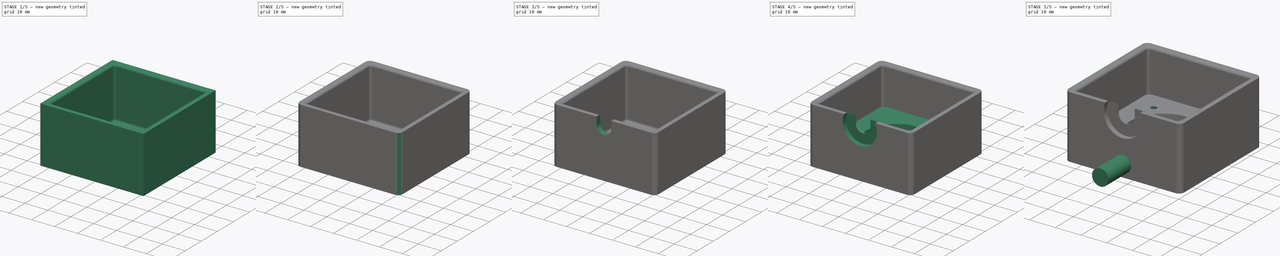
[diagram: build sequence overview — one tinted view per stage of 5, left to right]
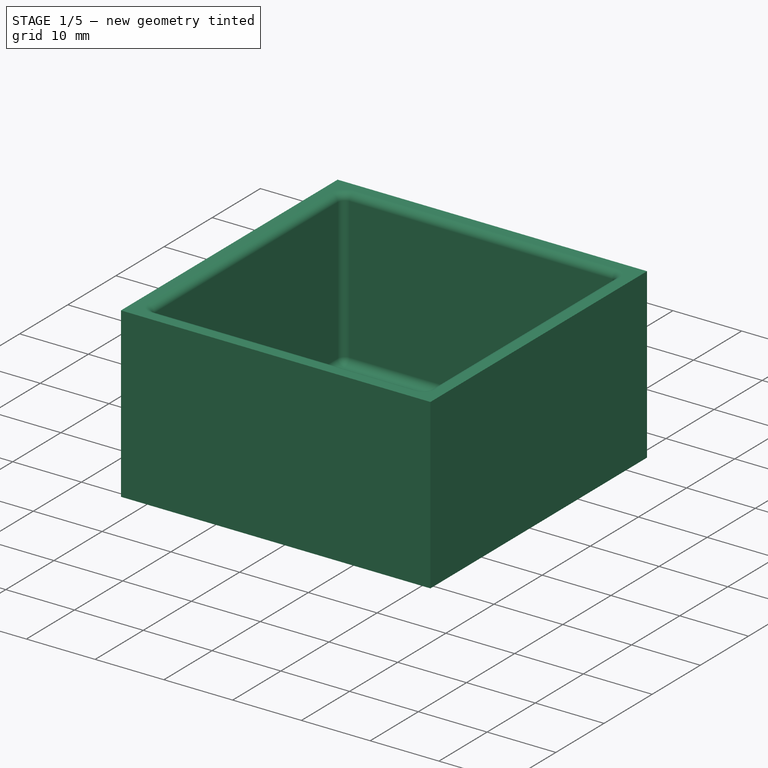
[diagram: stage 1 of 5 — iso view after this stage's code; geometry added in this stage tinted green]
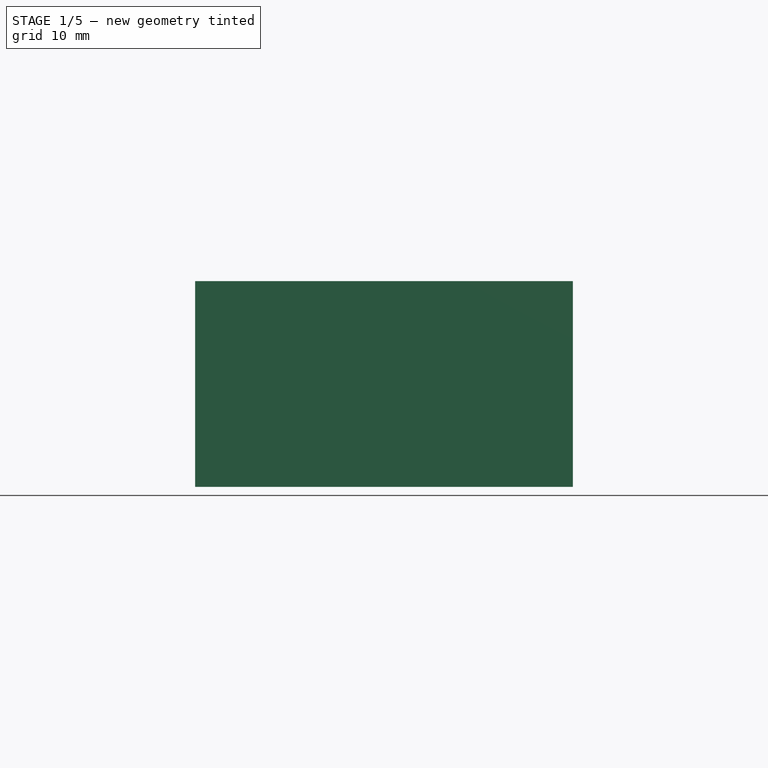
[diagram: stage 1 of 5 — front view after this stage's code; geometry added in this stage tinted green]
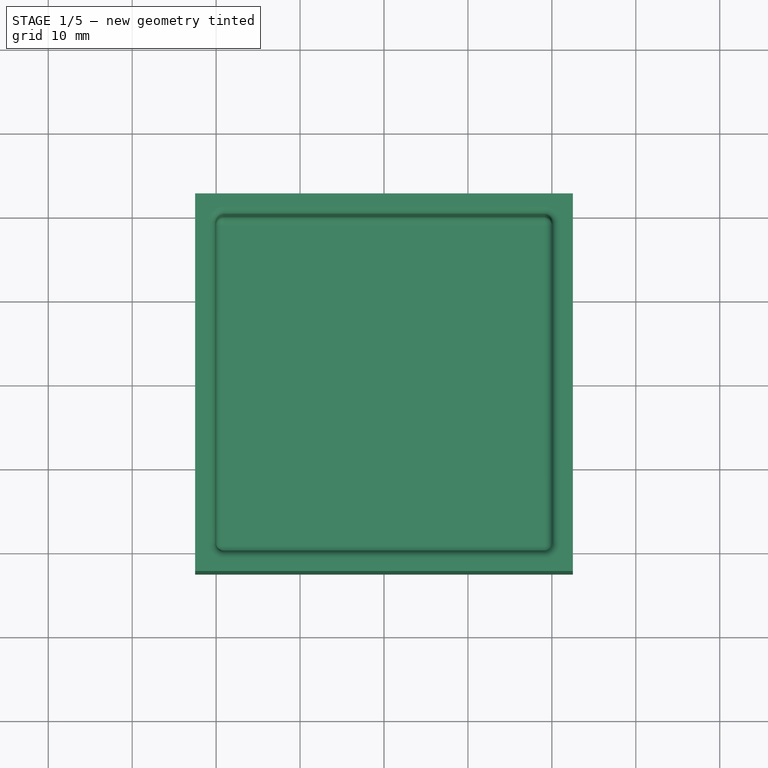
[diagram: stage 1 of 5 — top view after this stage's code; geometry added in this stage tinted green]
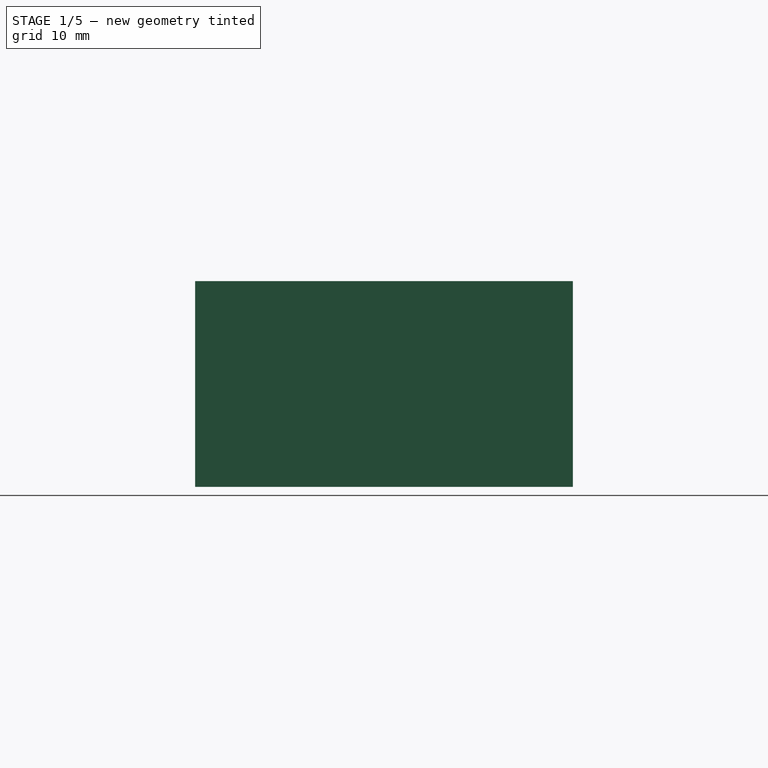
[diagram: stage 1 of 5 — right view after this stage's code; geometry added in this stage tinted green]
FCSTD DOCUMENT  (FreeCAD 0.20R29603 (Git))
Label: dfm_37ux178-ml-c-mount
License: All rights reserved
LicenseURL: http://en.wikipedia.org/wiki/All_rights_reserved
objects: Sketcher::SketchObject×12, PartDesign::Pocket×5, PartDesign::Pad×4, PartDesign::Hole×3, PartDesign::Fillet×3, PartDesign::Body×2, App::Part×1, PartDesign::Mirrored×1, PartDesign::PolarPattern×1
note: 46 computed .brp shape members not serialized (recipe doc carries the construction recipe); baked Part::Feature solids carry a one-line shape summary decoded from their .brp

FEATURE [PartDesign::Body] Body  label="Body-main-mount"
  Group = -> [Sketch,Pad,Sketch002,Hole001,Fillet,Sketch003,Pad001,Sketch001,Hole,Sketch004,Pad002]
  Origin = -> Origin001
  Tip = -> Pad002
FEATURE [Sketcher::SketchObject] Sketch005
  FullyConstrained = true
  MapMode = 5
  Support = -> [XY_Plane002]
  sketch-geometry (5):
    g0: LineSegment StartX=-22.5 StartY=22.5 StartZ=0 EndX=-22.5 EndY=-22.5 EndZ=0
    g1: LineSegment StartX=-22.5 StartY=-22.5 StartZ=0 EndX=22.5 EndY=-22.5 EndZ=0
    g2: LineSegment StartX=22.5 StartY=-22.5 StartZ=0 EndX=22.5 EndY=22.5 EndZ=0
    g3: LineSegment StartX=22.5 StartY=22.5 StartZ=0 EndX=-22.5 EndY=22.5 EndZ=0
    g4: GeomPoint X=0 Y=0 Z=0
  constraints (12):
    c: Coincident(g0,g1)
    c: Coincident(g1,g2)
    c: Coincident(g2,g3)
    c: Coincident(g3,g0)
    c: Horizontal(g1)
    c: Horizontal(g3)
    c: Vertical(g0)
    c: Vertical(g2)
    c: Symmetric(g1,g0,g4)
    c: Coincident(g4,g-1)
    c: DistanceY(g2,g2) = 45
    c: Equal(g3,g0)
FEATURE [PartDesign::Pad] Pad003
  Direction = (0,0,1)
  Length = 24.5
  Length2 = 10
  Profile = -> Sketch005
  ReferenceAxis = -> Sketch005 [N_Axis]
  Type = 0
FEATURE [Sketcher::SketchObject] Sketch006
  FullyConstrained = true
  MapMode = 5
  Placement = pos=(0,0,24.5) rot=(0,0,1;0rad)
  Support = -> [Pad003]
  sketch-geometry (5):
    g0: LineSegment StartX=-20.05 StartY=20.05 StartZ=0 EndX=-20.05 EndY=-20.05 EndZ=0
    g1: LineSegment StartX=-20.05 StartY=-20.05 StartZ=0 EndX=20.05 EndY=-20.05 EndZ=0
    g2: LineSegment StartX=20.05 StartY=-20.05 StartZ=0 EndX=20.05 EndY=20.05 EndZ=0
    g3: LineSegment StartX=20.05 StartY=20.05 StartZ=0 EndX=-20.05 EndY=20.05 EndZ=0
    g4: GeomPoint X=0 Y=0 Z=0
  constraints (12):
    c: Coincident(g0,g1)
    c: Coincident(g1,g2)
    c: Coincident(g2,g3)
    c: Coincident(g3,g0)
    c: Horizontal(g1)
    c: Horizontal(g3)
    c: Vertical(g0)
    c: Vertical(g2)
    c: Symmetric(g1,g0,g4)
    c: Coincident(g4,g-1)
    c: Equal(g1,g2)
    c: DistanceY(g2,g2) = 40.1
FEATURE [PartDesign::Pocket] Pocket
  BaseFeature = -> Pad003
  Direction = (0,0,-1)
  Length = 22.5
  Length2 = 5
  Profile = -> Sketch006
  ReferenceAxis = -> Sketch006 [N_Axis]
  Type = 0
FEATURE [PartDesign::Fillet] Fillet001
  Base = -> Pocket [Face8,Face7,Face10,Face9]
  BaseFeature = -> Pocket
  Radius = 1
  SupportTransform = false
  UseAllEdges = false
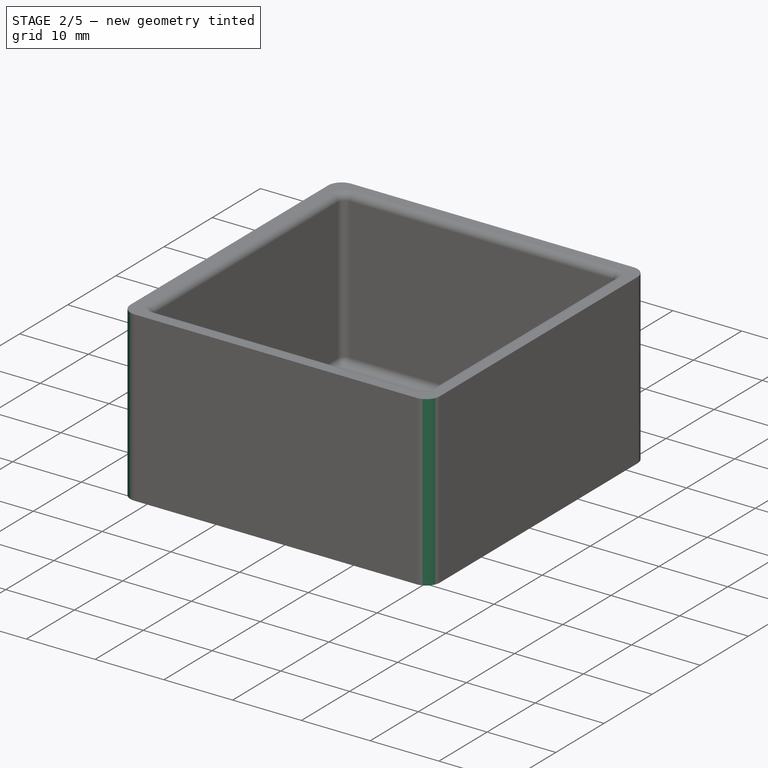
[diagram: stage 2 of 5 — iso view after this stage's code; geometry added in this stage tinted green]
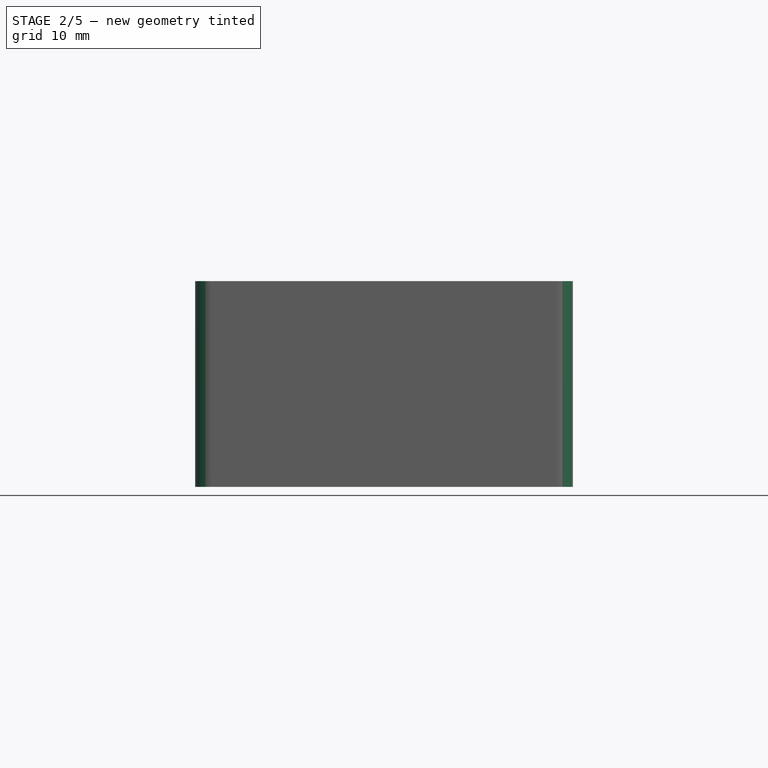
[diagram: stage 2 of 5 — front view after this stage's code; geometry added in this stage tinted green]
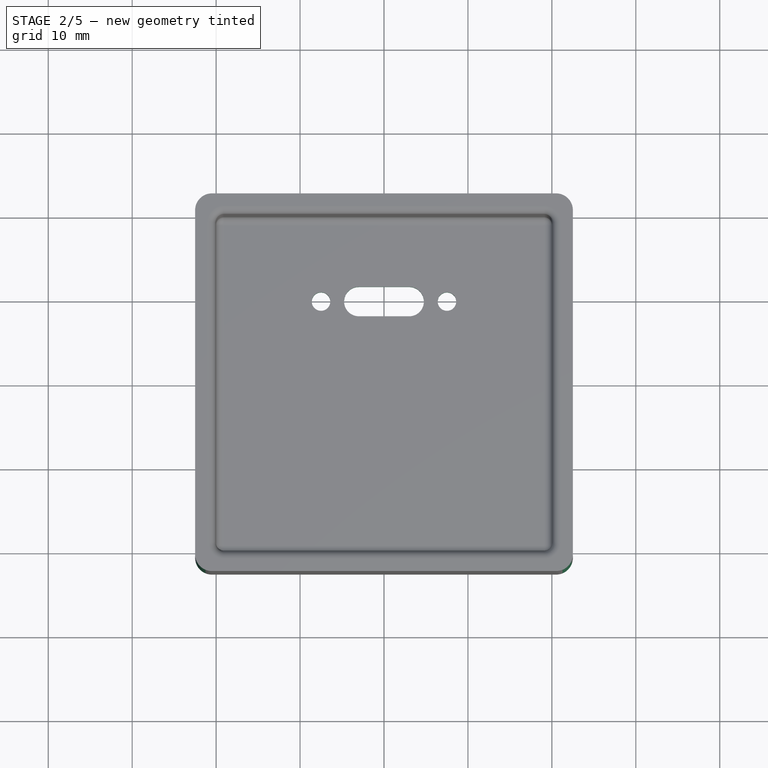
[diagram: stage 2 of 5 — top view after this stage's code; geometry added in this stage tinted green]
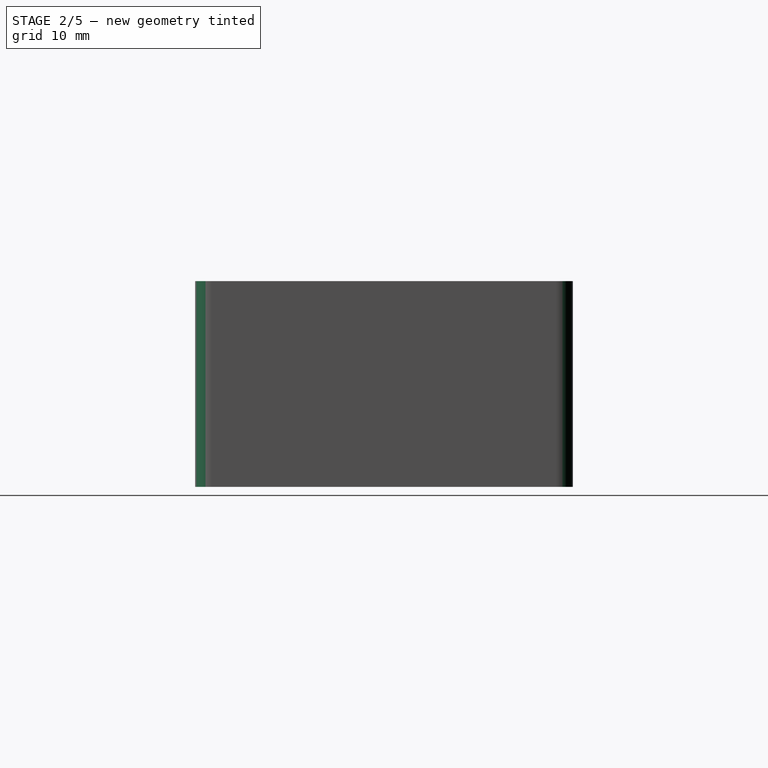
[diagram: stage 2 of 5 — right view after this stage's code; geometry added in this stage tinted green]
FEATURE [PartDesign::Fillet] Fillet002
  Base = -> Fillet001 [Edge30,Edge29,Edge32,Edge34]
  BaseFeature = -> Fillet001
  Radius = 2
  SupportTransform = false
  UseAllEdges = false
FEATURE [Sketcher::SketchObject] Sketch007
  FullyConstrained = true
  MapMode = 5
  Placement = pos=(0,0,0) rot=(1,0,0;3.14159rad)
  Support = -> [Fillet002]
  sketch-geometry (10):
    g0: ArcOfCircle CenterX=-3 CenterY=-10 CenterZ=0 NormalX=0 NormalY=0 NormalZ=1 AngleXU=0 Radius=1.75 StartAngle=1.5708 EndAngle=4.71239
    g1: ArcOfCircle CenterX=3 CenterY=-10 CenterZ=0 NormalX=0 NormalY=0 NormalZ=1 AngleXU=0 Radius=1.75 StartAngle=4.71239 EndAngle=7.85398
    g2: LineSegment StartX=-3 StartY=-11.75 StartZ=0 EndX=3 EndY=-11.75 EndZ=0
    g3: LineSegment StartX=3 StartY=-8.25 StartZ=0 EndX=-3 EndY=-8.25 EndZ=0
    g4: GeomPoint X=-4.75 Y=-10 Z=0
    g5: GeomPoint X=4.75 Y=-10 Z=0
    g6: LineSegment StartX=-4.75 StartY=-10 StartZ=0 EndX=-3 EndY=-8.25 EndZ=0
    g7: LineSegment StartX=-4.75 StartY=-10 StartZ=0 EndX=-3 EndY=-11.75 EndZ=0
    g8: LineSegment StartX=3 StartY=-8.25 StartZ=0 EndX=4.75 EndY=-10 EndZ=0
    g9: LineSegment StartX=3 StartY=-11.75 StartZ=0 EndX=4.75 EndY=-10 EndZ=0
  constraints (21):
    c: Tangent(g0,g2) = -1.5708
    c: Tangent(g2,g1) = -1.5708
    c: Tangent(g1,g3) = -1.5708
    c: Tangent(g3,g0) = -1.5708
    c: Equal(g0,g1)
    c: Symmetric(g0,g1,g-2)
    c: DistanceY(g1,g1) = 3.5
    c: PointOnObject(g4,g0)
    c: PointOnObject(g5,g1)
    c: Coincident(g6,g4)
    c: Coincident(g6,g0)
    c: Coincident(g7,g4)
    c: Coincident(g7,g0)
    c: Equal(g6,g7)
    c: Coincident(g8,g1)
    c: Coincident(g8,g5)
    c: Coincident(g9,g1)
    c: Coincident(g9,g5)
    c: Equal(g8,g9)
    c: DistanceX(g4,g5) = 9.5
    c: DistanceY(g4,g-1) = 10
FEATURE [PartDesign::Pocket] Pocket001
  BaseFeature = -> Fillet002
  Direction = (0,0,1)
  Length = 2
  Length2 = 5
  Profile = -> Sketch007
  ReferenceAxis = -> Sketch007 [N_Axis]
  Type = 0
FEATURE [Sketcher::SketchObject] Sketch008
  FullyConstrained = true
  MapMode = 5
  Placement = pos=(0,0,0) rot=(1,0,0;3.14159rad)
  Support = -> [Pocket001]
  sketch-geometry (1):
    g0: Circle CenterX=-7.5 CenterY=-10 CenterZ=0 NormalX=0 NormalY=0 NormalZ=1 AngleXU=0 Radius=1.1
  constraints (3):
    c: DistanceY(g0,g-1) = 10
    c: DistanceX(g0,g-1) = 7.5
    c: Diameter(g0) = 2.2
FEATURE [PartDesign::Hole] Hole002
  BaseFeature = -> Pocket001
  CustomThreadClearance = 0
  Depth = 2
  DepthType = 0
  Diameter = 2.2
  DrillForDepth = false
  DrillPoint = 1
  DrillPointAngle = 118
  HoleCutCountersinkAngle = 90
  HoleCutCustomValues = false
  HoleCutDepth = 0
  HoleCutDiameter = 6.1
  HoleCutType = 0
  ModelThread = false
  Profile = -> Sketch008
  Tapered = false
  TaperedAngle = 90
  ThreadClass = 0
  ThreadDepth = 2
  ThreadDepthType = 0
  ThreadDirection = 0
  ThreadFit = 0
  ThreadSize = 0
  ThreadType = 0
  Threaded = false
  UseCustomThreadClearance = false
FEATURE [PartDesign::Mirrored] Mirrored
  BaseFeature = -> Hole002
  MirrorPlane = -> Sketch008 [V_Axis]
  Originals = -> [Hole002]
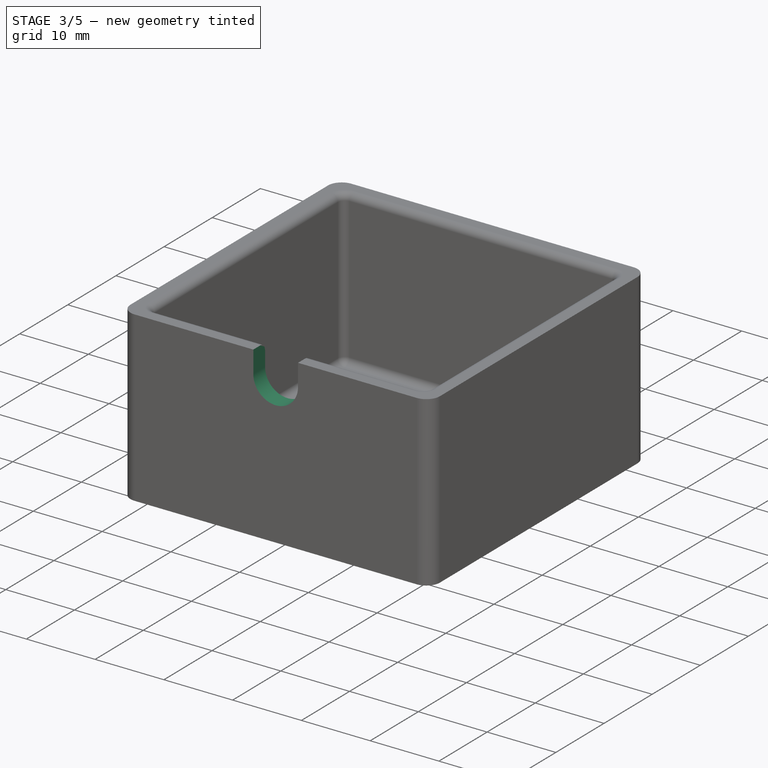
[diagram: stage 3 of 5 — iso view after this stage's code; geometry added in this stage tinted green]
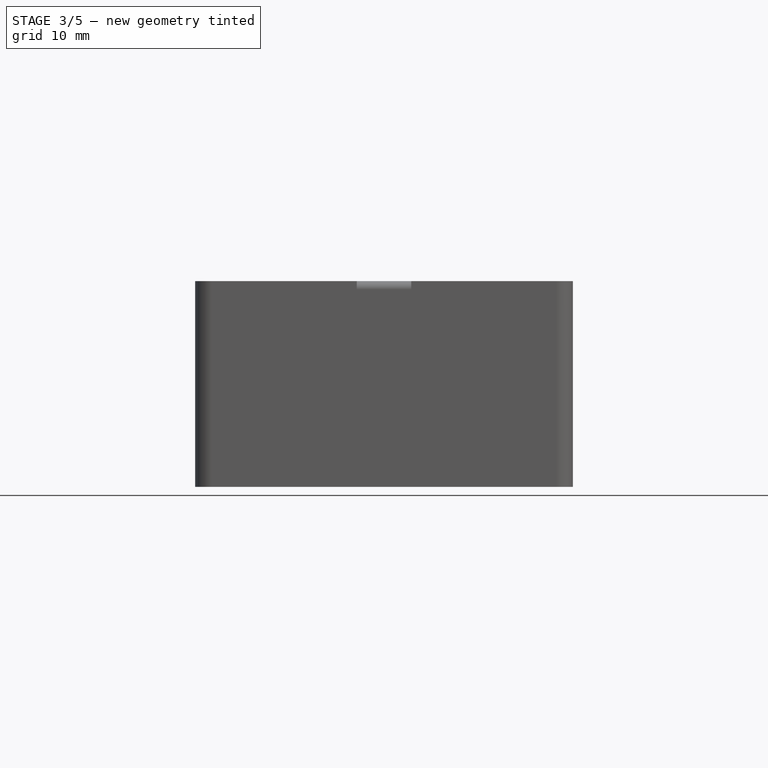
[diagram: stage 3 of 5 — front view after this stage's code; geometry added in this stage tinted green]
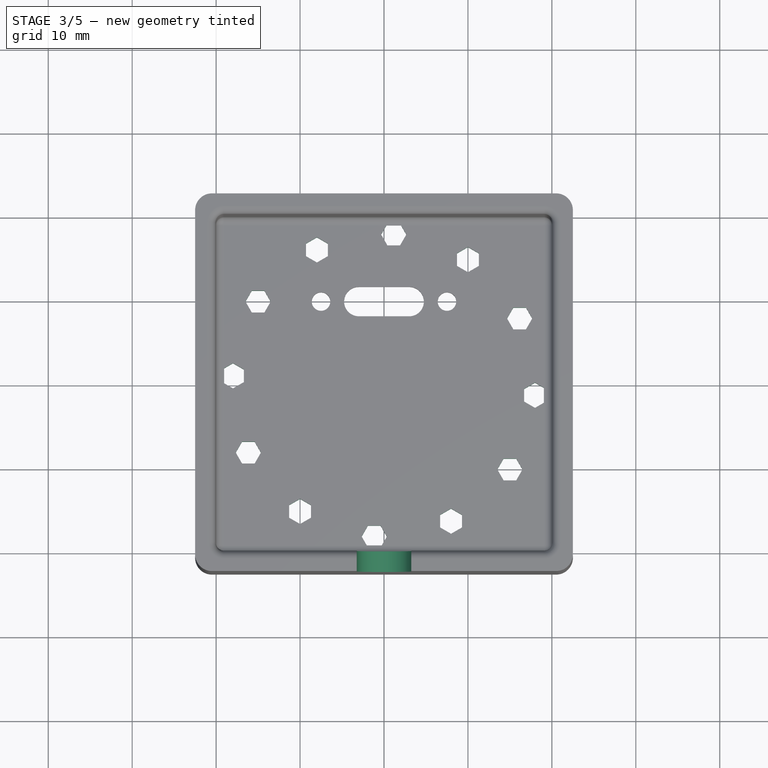
[diagram: stage 3 of 5 — top view after this stage's code; geometry added in this stage tinted green]
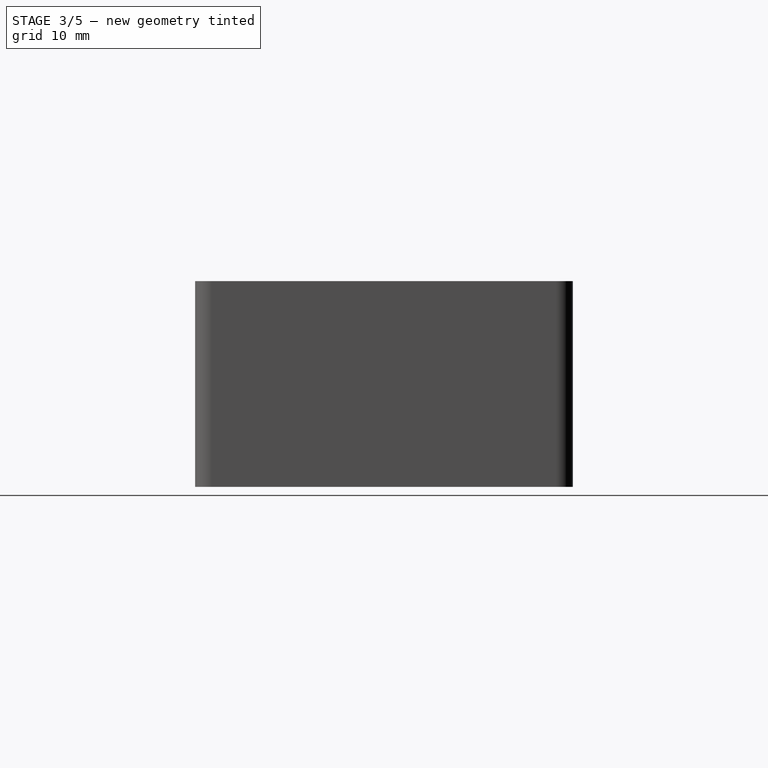
[diagram: stage 3 of 5 — right view after this stage's code; geometry added in this stage tinted green]
FEATURE [Sketcher::SketchObject] Sketch009
  FullyConstrained = true
  MapMode = 5
  Placement = pos=(0,0,0) rot=(1,0,0;3.14159rad)
  Support = -> [Mirrored]
  sketch-geometry (7):
    g0: LineSegment StartX=-8.70096 StartY=14.25 StartZ=0 EndX=-8.70096 EndY=15.75 EndZ=0
    g1: LineSegment StartX=-8.70096 StartY=15.75 StartZ=0 EndX=-10 EndY=16.5 EndZ=0
    g2: LineSegment StartX=-10 StartY=16.5 StartZ=0 EndX=-11.299 EndY=15.75 EndZ=0
    g3: LineSegment StartX=-11.299 StartY=15.75 StartZ=0 EndX=-11.299 EndY=14.25 EndZ=0
    g4: LineSegment StartX=-11.299 StartY=14.25 StartZ=0 EndX=-10 EndY=13.5 EndZ=0
    g5: LineSegment StartX=-10 StartY=13.5 StartZ=0 EndX=-8.70096 EndY=14.25 EndZ=0
    g6: Circle CenterX=-10 CenterY=15 CenterZ=0 NormalX=0 NormalY=0 NormalZ=1 AngleXU=0 Radius=1.5
  constraints (17):
    c: Coincident(g0,g1)
    c: Coincident(g1,g2)
    c: Coincident(g2,g3)
    c: Coincident(g3,g4)
    c: Coincident(g4,g5)
    c: Coincident(g5,g0)
    c: Equal(g0, g1-g5) x5
    c: PointOnObject(g0,g6)
    c: PointOnObject(g1,g6)
    c: PointOnObject(g2,g6)
    c: PointOnObject(g3,g6)
    c: PointOnObject(g4,g6)
    c: PointOnObject(g5,g6)
    c: DistanceY(g-1,g6) = 15
    c: DistanceX(g6,g-1) = 10
    c: Vertical(g0)
    c: Diameter(g6) = 3
FEATURE [PartDesign::Pocket] Pocket002
  BaseFeature = -> Mirrored
  Direction = (0,0,1)
  Length = 2
  Length2 = 5
  Profile = -> Sketch009
  ReferenceAxis = -> Sketch009 [N_Axis]
  Type = 0
FEATURE [PartDesign::PolarPattern] PolarPattern
  Angle = 360
  Axis = -> Sketch009 [N_Axis]
  BaseFeature = -> Pocket002
  Occurrences = 12
  Originals = -> [Pocket002]
FEATURE [Sketcher::SketchObject] Sketch010
  FullyConstrained = false
  MapMode = 5
  Placement = pos=(0,-22.5,0) rot=(1,0,0;1.5708rad)
  Support = -> [PolarPattern]
  sketch-geometry (6):
    g0: ArcOfCircle CenterX=0 CenterY=21.3 CenterZ=0 NormalX=0 NormalY=0 NormalZ=1 AngleXU=0 Radius=3.25 StartAngle=3.14159 EndAngle=6.28319
    g1: ArcOfCircle CenterX=-1e-16 CenterY=25.408 CenterZ=0 NormalX=0 NormalY=0 NormalZ=1 AngleXU=0 Radius=3.25 StartAngle=0 EndAngle=3.14159
    g2: LineSegment StartX=3.25 StartY=21.3 StartZ=0 EndX=3.25 EndY=25.408 EndZ=0
    g3: LineSegment StartX=-3.25 StartY=25.408 StartZ=0 EndX=-3.25 EndY=21.3 EndZ=0
    g4: LineSegment StartX=-3.25 StartY=21.3 StartZ=0 EndX=3.25 EndY=21.3 EndZ=0
    g5: LineSegment StartX=-3.25 StartY=25.408 StartZ=0 EndX=3.25 EndY=25.408 EndZ=0
  constraints (17):
    c: PointOnObject(g0,g-2)
    c: Vertical(g3)
    c: Coincident(g0,g2)
    c: Coincident(g0,g3)
    c: Coincident(g1,g2)
    c: Coincident(g1,g3)
    c: Coincident(g4,g0)
    c: Coincident(g4,g0)
    c: Horizontal(g4)
    c: Vertical(g2)
    c: DistanceX(g4,g4) = 6.5
    c: PointOnObject(g0,g4)
    c: Coincident(g5,g1)
    c: Coincident(g5,g1)
    c: Horizontal(g5)
    c: PointOnObject(g1,g5)
    c: DistanceY(g-1,g0) = 21.3
FEATURE [PartDesign::Pocket] Pocket003  label="Pocket-slot"
  BaseFeature = -> PolarPattern
  Direction = (0,1,-2e-16)
  Length = 3
  Length2 = 5
  Profile = -> Sketch010
  ReferenceAxis = -> Sketch010 [N_Axis]
  Type = 0
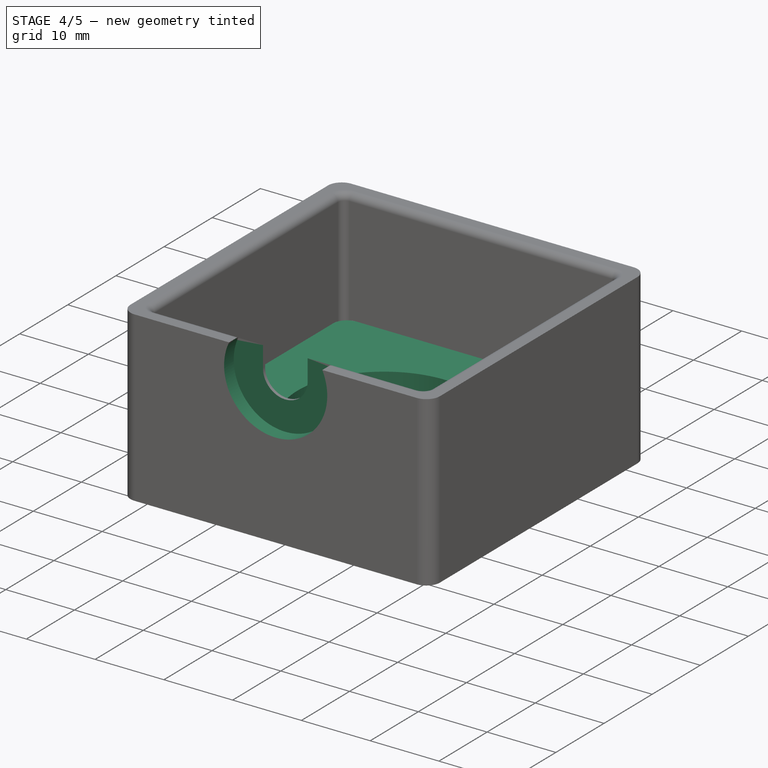
[diagram: stage 4 of 5 — iso view after this stage's code; geometry added in this stage tinted green]
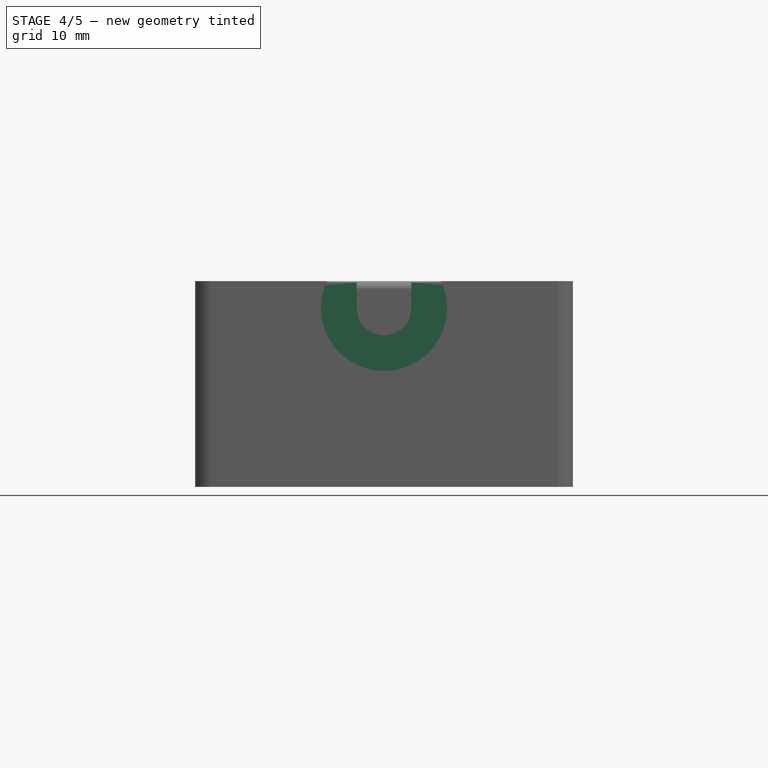
[diagram: stage 4 of 5 — front view after this stage's code; geometry added in this stage tinted green]
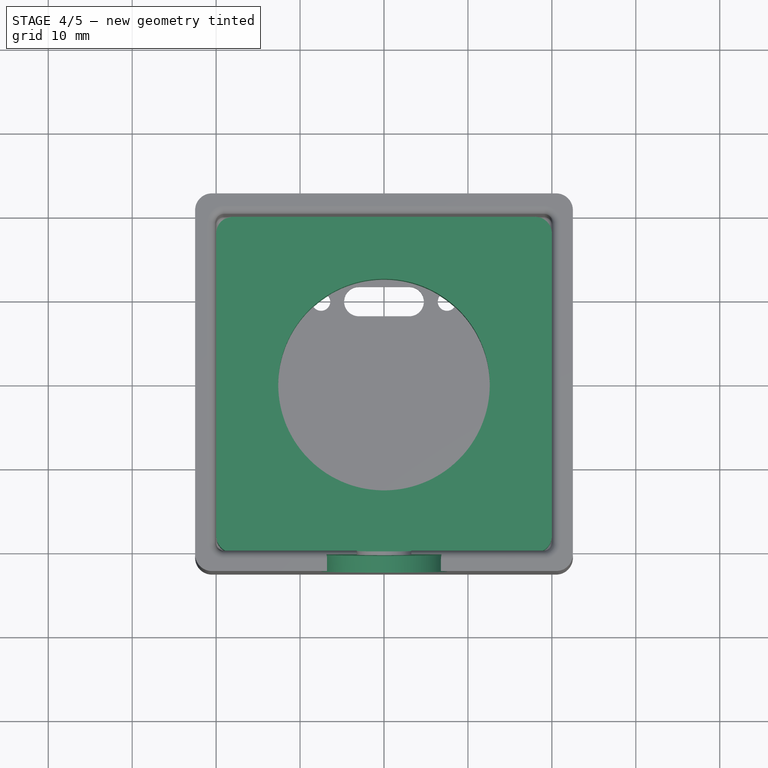
[diagram: stage 4 of 5 — top view after this stage's code; geometry added in this stage tinted green]
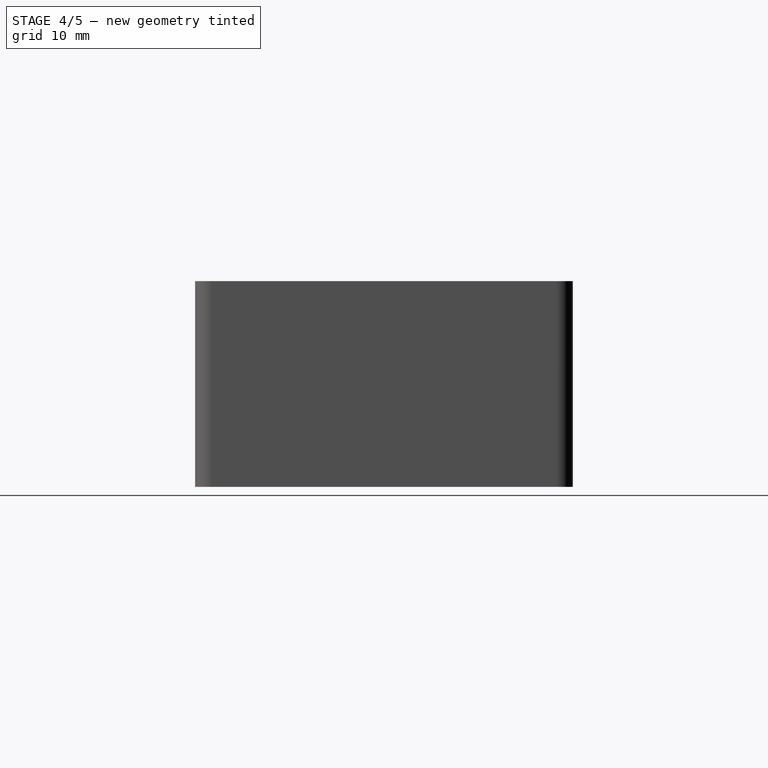
[diagram: stage 4 of 5 — right view after this stage's code; geometry added in this stage tinted green]
FEATURE [App::Part] Part
  Origin = -> Origin
FEATURE [Sketcher::SketchObject] Sketch
  FullyConstrained = true
  MapMode = 5
  Support = -> [XY_Plane001]
  sketch-geometry (5):
    g0: LineSegment StartX=-20 StartY=20 StartZ=0 EndX=-20 EndY=-20 EndZ=0
    g1: LineSegment StartX=-20 StartY=-20 StartZ=0 EndX=20 EndY=-20 EndZ=0
    g2: LineSegment StartX=20 StartY=-20 StartZ=0 EndX=20 EndY=20 EndZ=0
    g3: LineSegment StartX=20 StartY=20 StartZ=0 EndX=-20 EndY=20 EndZ=0
    g4: GeomPoint X=4e-16 Y=-1e-16 Z=0
  constraints (12):
    c: Coincident(g0,g1)
    c: Coincident(g1,g2)
    c: Coincident(g2,g3)
    c: Coincident(g3,g0)
    c: Horizontal(g1)
    c: Horizontal(g3)
    c: Vertical(g0)
    c: Vertical(g2)
    c: Symmetric(g1,g0,g4)
    c: Coincident(g4,g-1)
    c: Equal(g3,g0)
    c: DistanceY(g2,g2) = 40
FEATURE [PartDesign::Pad] Pad
  Direction = (0,0,1)
  Length = 8
  Length2 = 10
  Profile = -> Sketch
  ReferenceAxis = -> Sketch [N_Axis]
  Type = 0
FEATURE [Sketcher::SketchObject] Sketch001
  FullyConstrained = false
  MapMode = 5
  Placement = pos=(0,0,8) rot=(0,0,1;0rad)
  Support = -> [Pad]
  sketch-geometry (6):
    g0: Circle CenterX=12.25 CenterY=-12.25 CenterZ=0 NormalX=0 NormalY=0 NormalZ=1 AngleXU=0 Radius=1.05
    g1: Circle CenterX=-12.25 CenterY=-12.25 CenterZ=0 NormalX=0 NormalY=0 NormalZ=1 AngleXU=0 Radius=1.05
    g2: LineSegment StartX=0 StartY=15.2475 StartZ=0 EndX=0 EndY=-34.5243 EndZ=0
    g3: LineSegment StartX=-34.125 StartY=0 StartZ=0 EndX=40.5221 EndY=0 EndZ=0
    g4: Circle CenterX=-12.25 CenterY=12.25 CenterZ=0 NormalX=0 NormalY=0 NormalZ=1 AngleXU=0 Radius=1.05
    g5: Circle CenterX=12.25 CenterY=12.25 CenterZ=0 NormalX=0 NormalY=0 NormalZ=1 AngleXU=0 Radius=1.05
  constraints (13):
    c: Horizontal(g3)
    c: Vertical(g2)
    c: DistanceX(g2,g-1) = 0
    c: DistanceY(g-1,g3) = 0
    c: Symmetric(g0,g1,g2)
    c: Symmetric(g5,g0,g3)
    c: Symmetric(g5,g4,g2)
    c: Equal(g0,g1)
    c: Equal(g0,g4)
    c: Equal(g0,g5)
    c: Diameter(g0) = 2.1
    c: DistanceX(g4,g5) = 24.5
    c: DistanceY(g0,g5) = 24.5
FEATURE [Sketcher::SketchObject] Sketch002
  FullyConstrained = true
  MapMode = 5
  Placement = pos=(0,0,20) rot=(0,0,1;0rad)
  sketch-geometry (1):
    g0: Circle CenterX=0 CenterY=0 CenterZ=0 NormalX=0 NormalY=0 NormalZ=1 AngleXU=0 Radius=12.7
  constraints (2):
    c: Coincident(g0,g-1)
    c: Diameter(g0) = 25.4
FEATURE [PartDesign::Hole] Hole001
  BaseFeature = -> Pad
  CustomThreadClearance = 0
  Depth = 121.2
  DepthType = 1
  Diameter = 25.2
  DrillForDepth = false
  DrillPoint = 1
  DrillPointAngle = 118
  HoleCutCountersinkAngle = 90
  HoleCutCustomValues = false
  HoleCutDepth = 0
  HoleCutDiameter = 0
  HoleCutType = 0
  ModelThread = false
  Profile = -> Sketch002
  Tapered = false
  TaperedAngle = 90
  ThreadClass = 0
  ThreadDepth = 121.2
  ThreadDepthType = 0
  ThreadDirection = 0
  ThreadFit = 0
  ThreadSize = 0
  ThreadType = 0
  Threaded = false
  UseCustomThreadClearance = false
FEATURE [PartDesign::Fillet] Fillet
  Base = -> Hole001 [Edge5,Edge8,Edge2,Edge1]
  BaseFeature = -> Hole001
  Radius = 2
  SupportTransform = false
  UseAllEdges = false
FEATURE [Sketcher::SketchObject] Sketch011
  FullyConstrained = true
  MapMode = 5
  Placement = pos=(0,-22.5,0) rot=(1,0,0;1.5708rad)
  Support = -> [Pocket003]
  sketch-geometry (1):
    g0: Circle CenterX=0 CenterY=21.3 CenterZ=0 NormalX=0 NormalY=0 NormalZ=1 AngleXU=0 Radius=7.5
  constraints (3):
    c: PointOnObject(g0,g-2)
    c: DistanceY(g-1,g0) = 21.3
    c: Diameter(g0) = 15
FEATURE [PartDesign::Pocket] Pocket004  label="Pocket-coupler-alignment"
  BaseFeature = -> Pocket003
  Direction = (0,1,-2e-16)
  Length = 2
  Length2 = 5
  Profile = -> Sketch011
  ReferenceAxis = -> Sketch011 [N_Axis]
  Type = 0
FEATURE [PartDesign::Body] Body001  label="Body-electronics-cover"
  Group = -> [Sketch005,Pad003,Sketch006,Pocket,Fillet001,Fillet002,Sketch007,Pocket001,Sketch008,Hole002,Mirrored,Sketch009,Pocket002,PolarPattern,Sketch010,Pocket003,Sketch011,Pocket004]
  Origin = -> Origin002
  Placement = pos=(0,0,-30) rot=(0,0,1;0rad)
  Tip = -> Pocket004
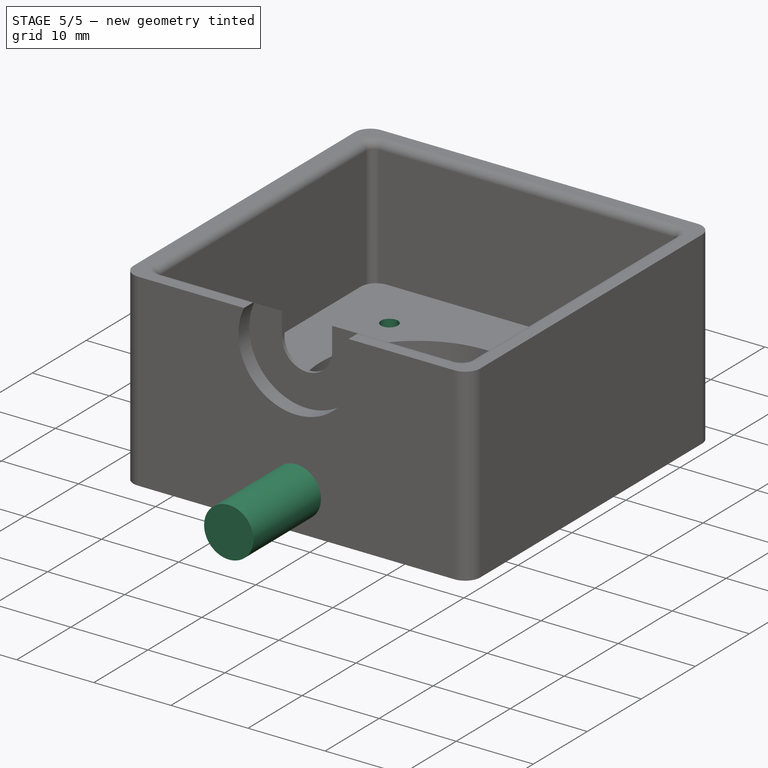
[diagram: stage 5 of 5 — iso view after this stage's code; geometry added in this stage tinted green]
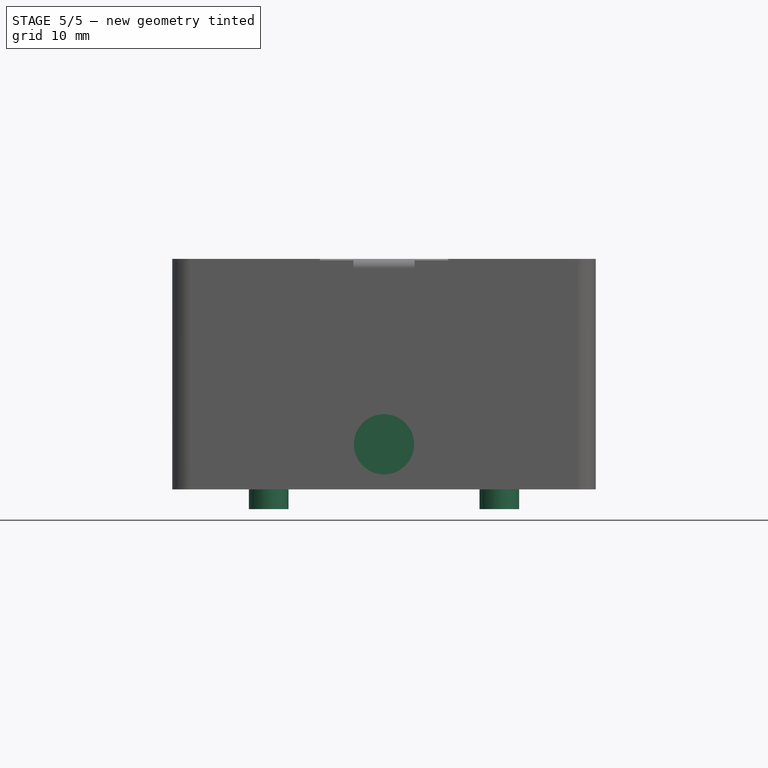
[diagram: stage 5 of 5 — front view after this stage's code; geometry added in this stage tinted green]
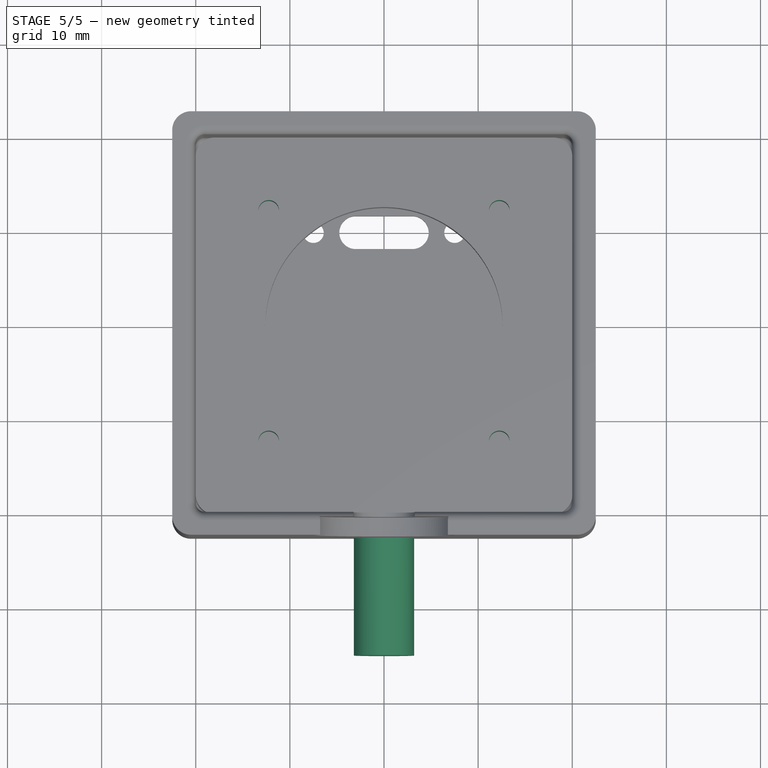
[diagram: stage 5 of 5 — top view after this stage's code; geometry added in this stage tinted green]
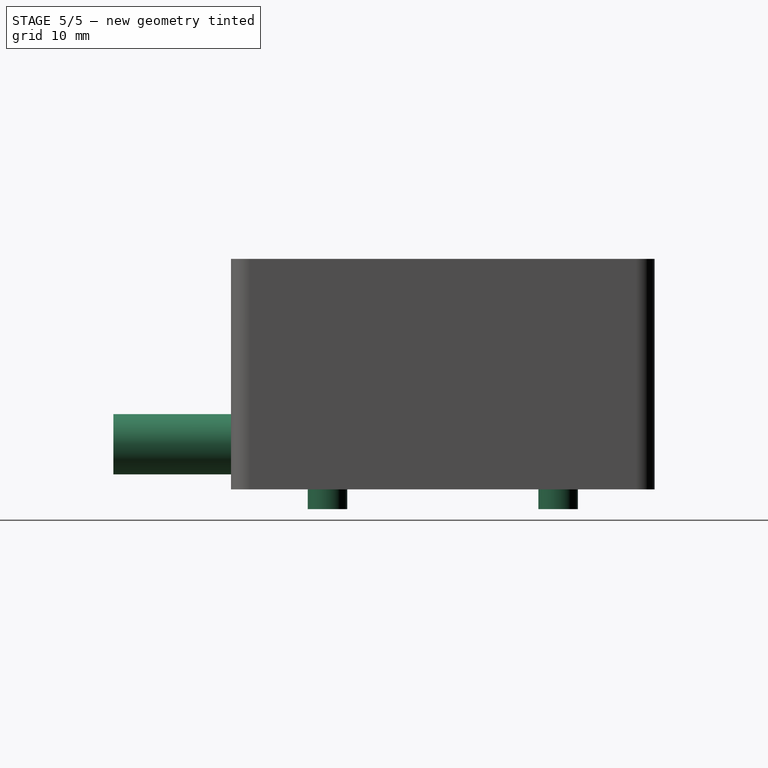
[diagram: stage 5 of 5 — right view after this stage's code; geometry added in this stage tinted green]
FEATURE [Sketcher::SketchObject] Sketch003
  FullyConstrained = false
  MapMode = 5
  Placement = pos=(0,0,0) rot=(1,0,0;3.14159rad)
  Support = -> [Fillet]
  sketch-geometry (6):
    g0: LineSegment StartX=0 StartY=22.7977 StartZ=0 EndX=0 EndY=-25.904 EndZ=0
    g1: LineSegment StartX=-27.9329 StartY=0 StartZ=0 EndX=28.6326 EndY=0 EndZ=0
    g2: Circle CenterX=-12.25 CenterY=12.25 CenterZ=0 NormalX=0 NormalY=0 NormalZ=1 AngleXU=0 Radius=2.1
    g3: Circle CenterX=12.25 CenterY=12.25 CenterZ=0 NormalX=0 NormalY=0 NormalZ=1 AngleXU=0 Radius=2.1
    g4: Circle CenterX=-12.25 CenterY=-12.25 CenterZ=0 NormalX=0 NormalY=0 NormalZ=1 AngleXU=0 Radius=2.1
    g5: Circle CenterX=12.25 CenterY=-12.25 CenterZ=0 NormalX=0 NormalY=0 NormalZ=1 AngleXU=0 Radius=2.1
  constraints (13):
    c: Vertical(g0)
    c: Horizontal(g1)
    c: PointOnObject(g-1,g1)
    c: PointOnObject(g-1,g0)
    c: Equal(g2,g3)
    c: Equal(g2,g4)
    c: Equal(g2,g5)
    c: Diameter(g2) = 4.2
    c: Symmetric(g2,g3,g0)
    c: Symmetric(g4,g5,g0)
    c: Symmetric(g2,g4,g1)
    c: DistanceY(g4,g2) = 24.5
    c: DistanceX(g4,g5) = 24.5
FEATURE [PartDesign::Pad] Pad001
  BaseFeature = -> Fillet
  Direction = (0,0,-1)
  Length = 2.1
  Length2 = 10
  Profile = -> Sketch003
  ReferenceAxis = -> Sketch003 [N_Axis]
  Type = 0
FEATURE [PartDesign::Hole] Hole
  BaseFeature = -> Pad001
  CustomThreadClearance = 0
  Depth = 122.679
  DepthType = 1
  Diameter = 2.2
  DrillForDepth = false
  DrillPoint = 1
  DrillPointAngle = 118
  HoleCutCountersinkAngle = 90
  HoleCutCustomValues = false
  HoleCutDepth = 0
  HoleCutDiameter = 6.1
  HoleCutType = 0
  ModelThread = false
  Profile = -> Sketch001
  Tapered = false
  TaperedAngle = 90
  ThreadClass = 0
  ThreadDepth = 122.679
  ThreadDepthType = 0
  ThreadDirection = 0
  ThreadFit = 0
  ThreadSize = 0
  ThreadType = 0
  Threaded = false
  UseCustomThreadClearance = false
FEATURE [Sketcher::SketchObject] Sketch004
  FullyConstrained = true
  MapMode = 5
  Placement = pos=(0,-20,0) rot=(1,0,0;1.5708rad)
  Support = -> [Hole]
  sketch-geometry (2):
    g0: Circle CenterX=0 CenterY=4.8 CenterZ=0 NormalX=0 NormalY=0 NormalZ=1 AngleXU=0 Radius=3.2
    g1: GeomPoint X=0 Y=8 Z=0
  constraints (5):
    c: PointOnObject(g0,g-2)
    c: Diameter(g0) = 6.4
    c: PointOnObject(g1,g0)
    c: PointOnObject(g1,g-2)
    c: DistanceY(g-1,g1) = 8
FEATURE [PartDesign::Pad] Pad002
  BaseFeature = -> Hole
  Direction = (0,-1,2e-16)
  Length = 15
  Length2 = 10
  Profile = -> Sketch004
  ReferenceAxis = -> Sketch004 [N_Axis]
  Type = 0
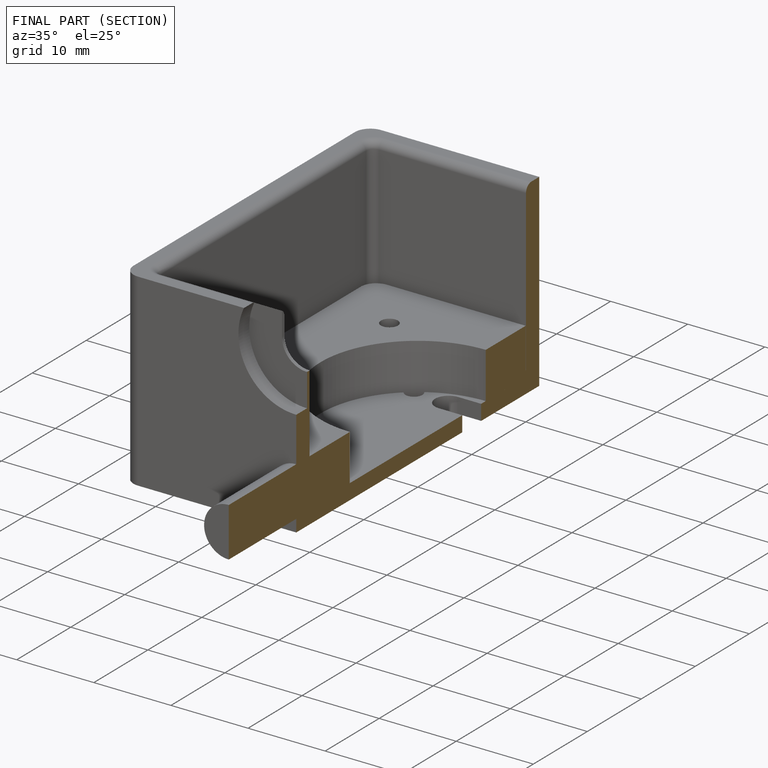
[diagram: finished part — half-section view (interior)]
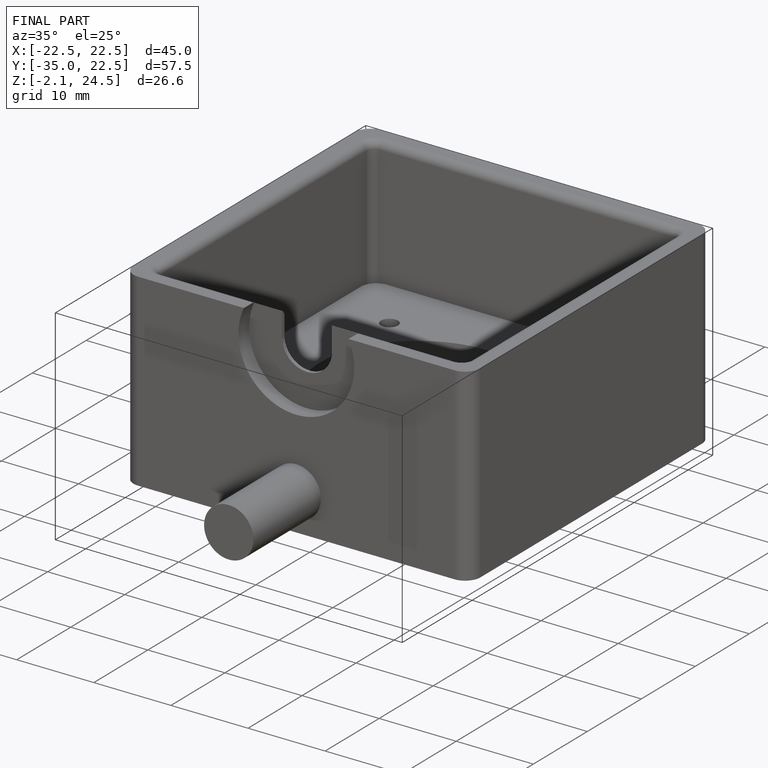
[diagram: finished part — iso view with bounding-box wireframe]
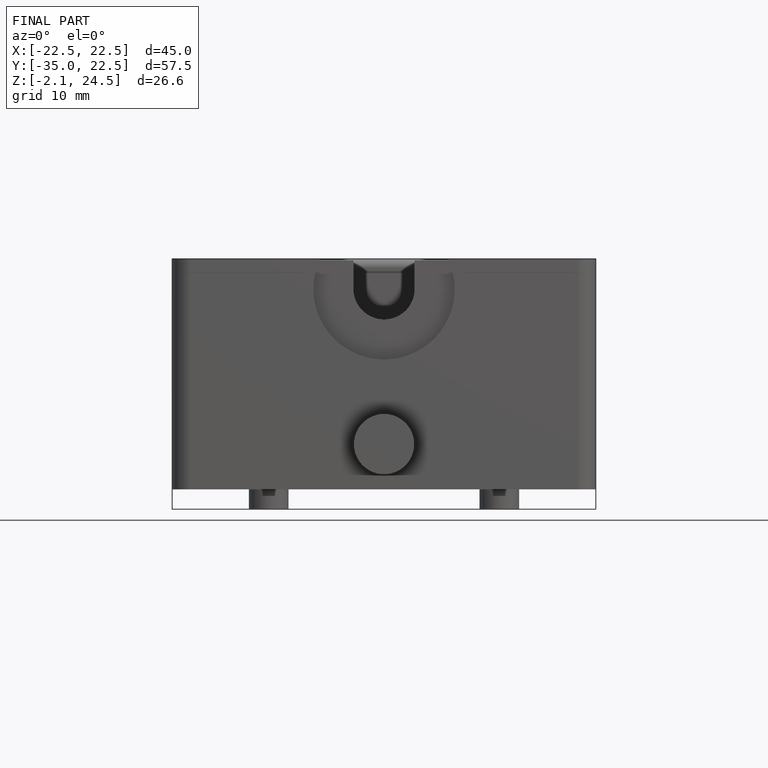
[diagram: finished part — front view with bounding-box wireframe]
